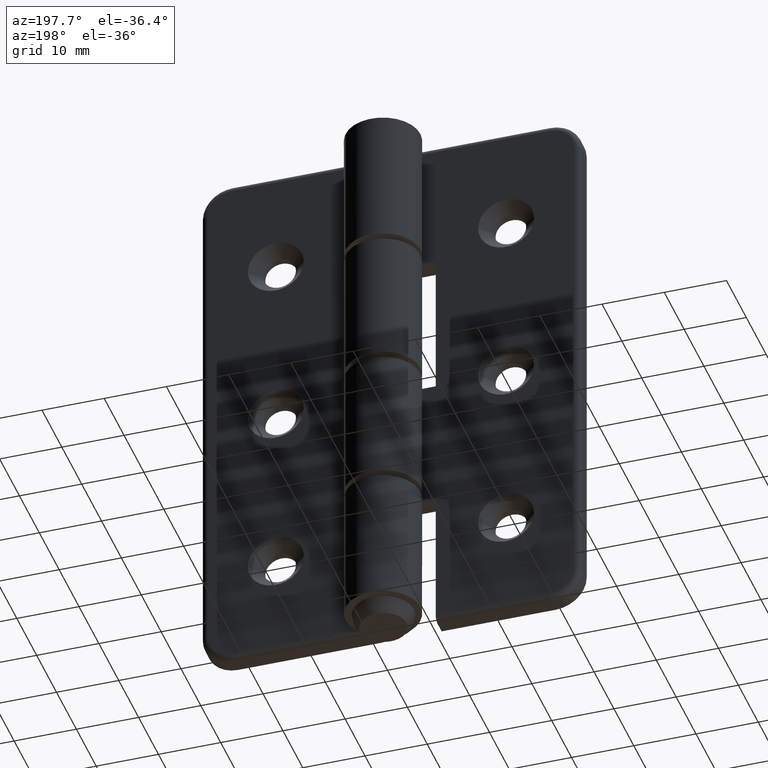
[diagram: clean part render]
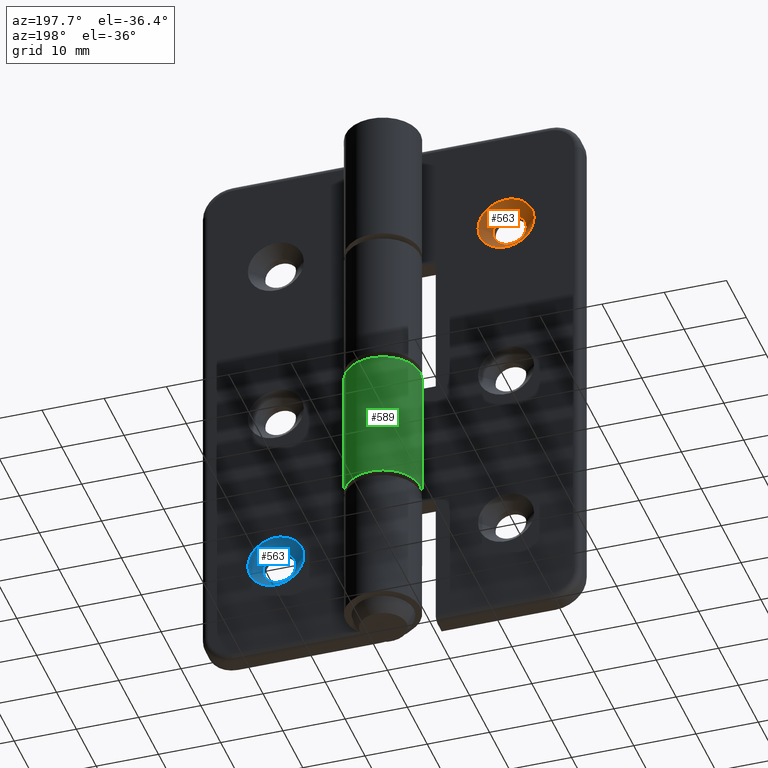
[diagram: same view with three faces highlighted in distinct colors, each labeled with its STEP entity id]
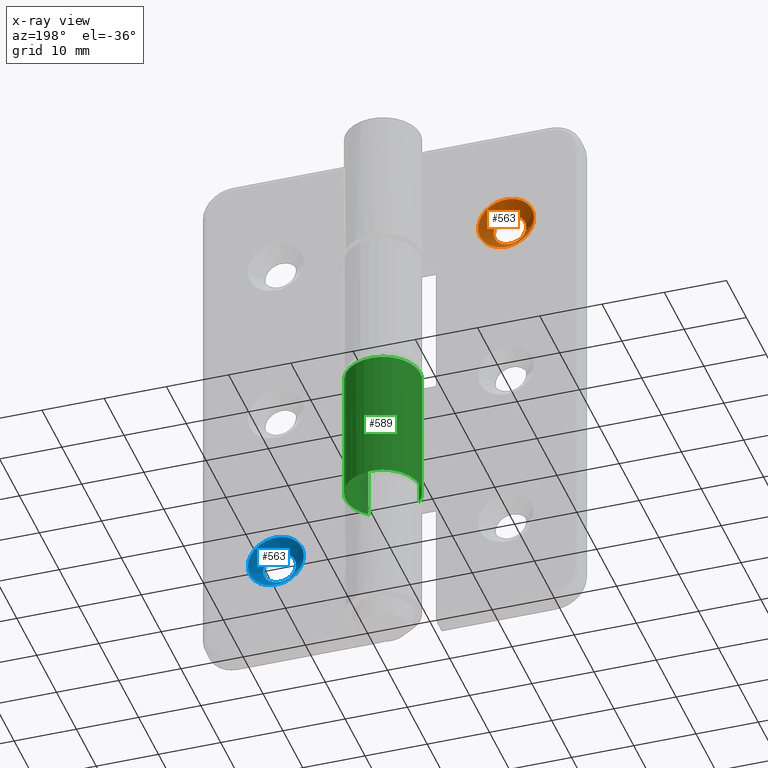
[diagram: x-ray of the same camera — body ghosted, the three highlighted faces saturated]
A machine part, auxiliary view with three faces highlighted in distinct colors.
The next image is the same camera in x-ray (body ghosted, the three faces saturated) — at least one of them is partly hidden behind the body in this view.
Their STEP definitions:

[orange] entity #563 — the highlighted conical surface has half-angle 45 deg.
#133=FACE_BOUND('',#192,.T.);
#154=FACE_OUTER_BOUND('',#191,.T.);
#191=EDGE_LOOP('',(#414));
#192=EDGE_LOOP('',(#415));
#246=CIRCLE('',#605,4.5);
#247=CIRCLE('',#606,2.65);
#285=VERTEX_POINT('',#878);
#286=VERTEX_POINT('',#880);
#339=EDGE_CURVE('',#285,#285,#246,.T.);
#340=EDGE_CURVE('',#286,#286,#247,.T.);
#414=ORIENTED_EDGE('',*,*,#339,.F.);
#415=ORIENTED_EDGE('',*,*,#340,.F.);
#559=CONICAL_SURFACE('',#604,3.575,45.);
#563=ADVANCED_FACE('',(#154,#133),#559,.F.);
#604=AXIS2_PLACEMENT_3D('',#877,#689,#690);
#605=AXIS2_PLACEMENT_3D('',#879,#691,#692);
#606=AXIS2_PLACEMENT_3D('',#881,#693,#694);
#689=DIRECTION('center_axis',(0.,1.,0.));
#690=DIRECTION('ref_axis',(1.,0.,0.));
#691=DIRECTION('center_axis',(0.,-1.,0.));
#692=DIRECTION('ref_axis',(1.,0.,0.));
#693=DIRECTION('center_axis',(0.,1.,0.));
#694=DIRECTION('ref_axis',(1.,0.,0.));
#877=CARTESIAN_POINT('Origin',(-18.5,2.075,-17.));
#878=CARTESIAN_POINT('',(-14.,3.,-17.));
#879=CARTESIAN_POINT('Origin',(-18.5,3.,-17.));
#880=CARTESIAN_POINT('',(-15.85,1.15,-17.));
#881=CARTESIAN_POINT('Origin',(-18.5,1.15,-17.));

[blue] entity #563 — the highlighted conical surface has half-angle 45 deg.
#133=FACE_BOUND('',#192,.T.);
#154=FACE_OUTER_BOUND('',#191,.T.);
#191=EDGE_LOOP('',(#414));
#192=EDGE_LOOP('',(#415));
#246=CIRCLE('',#605,4.5);
#247=CIRCLE('',#606,2.65);
#285=VERTEX_POINT('',#878);
#286=VERTEX_POINT('',#880);
#339=EDGE_CURVE('',#285,#285,#246,.T.);
#340=EDGE_CURVE('',#286,#286,#247,.T.);
#414=ORIENTED_EDGE('',*,*,#339,.F.);
#415=ORIENTED_EDGE('',*,*,#340,.F.);
#559=CONICAL_SURFACE('',#604,3.575,45.);
#563=ADVANCED_FACE('',(#154,#133),#559,.F.);
#604=AXIS2_PLACEMENT_3D('',#877,#689,#690);
#605=AXIS2_PLACEMENT_3D('',#879,#691,#692);
#606=AXIS2_PLACEMENT_3D('',#881,#693,#694);
#689=DIRECTION('center_axis',(0.,1.,0.));
#690=DIRECTION('ref_axis',(1.,0.,0.));
#691=DIRECTION('center_axis',(0.,-1.,0.));
#692=DIRECTION('ref_axis',(1.,0.,0.));
#693=DIRECTION('center_axis',(0.,1.,0.));
#694=DIRECTION('ref_axis',(1.,0.,0.));
#877=CARTESIAN_POINT('Origin',(-18.5,2.075,-17.));
#878=CARTESIAN_POINT('',(-14.,3.,-17.));
#879=CARTESIAN_POINT('Origin',(-18.5,3.,-17.));
#880=CARTESIAN_POINT('',(-15.85,1.15,-17.));
#881=CARTESIAN_POINT('Origin',(-18.5,1.15,-17.));

[green] entity #589 — the highlighted cylindrical surface (partial cylindrical patch) has radius 6 mm, axis along (0, 0, -1).
#78=LINE('',#1012,#111);
#80=LINE('',#1015,#113);
#111=VECTOR('',#821,21.5);
#113=VECTOR('',#825,21.5);
#129=CYLINDRICAL_SURFACE('',#659,6.);
#180=FACE_OUTER_BOUND('',#233,.T.);
#233=EDGE_LOOP('',(#538,#539,#540,#541));
#266=CIRCLE('',#641,6.);
#273=CIRCLE('',#651,6.);
#318=VERTEX_POINT('',#980);
#319=VERTEX_POINT('',#982);
#326=VERTEX_POINT('',#1002);
#327=VERTEX_POINT('',#1004);
#384=EDGE_CURVE('',#319,#318,#266,.T.);
#395=EDGE_CURVE('',#327,#326,#273,.T.);
#399=EDGE_CURVE('',#326,#319,#78,.T.);
#401=EDGE_CURVE('',#327,#318,#80,.T.);
#538=ORIENTED_EDGE('',*,*,#384,.T.);
#539=ORIENTED_EDGE('',*,*,#401,.F.);
#540=ORIENTED_EDGE('',*,*,#395,.T.);
#541=ORIENTED_EDGE('',*,*,#399,.T.);
#589=ADVANCED_FACE('',(#180),#129,.T.);
#641=AXIS2_PLACEMENT_3D('',#983,#787,#788);
#651=AXIS2_PLACEMENT_3D('',#1005,#811,#812);
#659=AXIS2_PLACEMENT_3D('',#1019,#832,#833);
#787=DIRECTION('center_axis',(0.,0.,1.));
#788=DIRECTION('ref_axis',(-0.640605925837962,0.767869811739781,0.));
#811=DIRECTION('center_axis',(0.,0.,-1.));
#812=DIRECTION('ref_axis',(-0.640605925837962,0.767869811739781,0.));
#821=DIRECTION('',(0.,0.,-1.));
#825=DIRECTION('',(0.,0.,-1.));
#832=DIRECTION('center_axis',(0.,0.,-1.));
#833=DIRECTION('ref_axis',(-0.640605925837962,0.767869811739781,0.));
#980=CARTESIAN_POINT('',(-4.47213595499958,3.,-67.));
#982=CARTESIAN_POINT('',(3.84363555502778,2.39278112956131,-67.));
#983=CARTESIAN_POINT('Origin',(1.66533453693773E-15,7.,-67.));
#1002=CARTESIAN_POINT('',(3.84363555502778,2.39278112956131,-45.5));
#1004=CARTESIAN_POINT('',(-4.47213595499958,3.,-45.5));
#1005=CARTESIAN_POINT('Origin',(1.66533453693773E-15,7.,-45.5));
#1012=CARTESIAN_POINT('',(3.84363555502778,2.39278112956131,0.));
#1015=CARTESIAN_POINT('',(-4.47213595499958,3.,0.));
#1019=CARTESIAN_POINT('Origin',(1.66533453693773E-15,7.,0.));